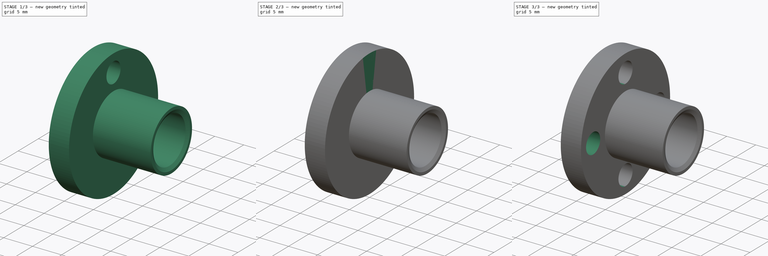
[diagram: build sequence overview — one tinted view per stage of 3, left to right]
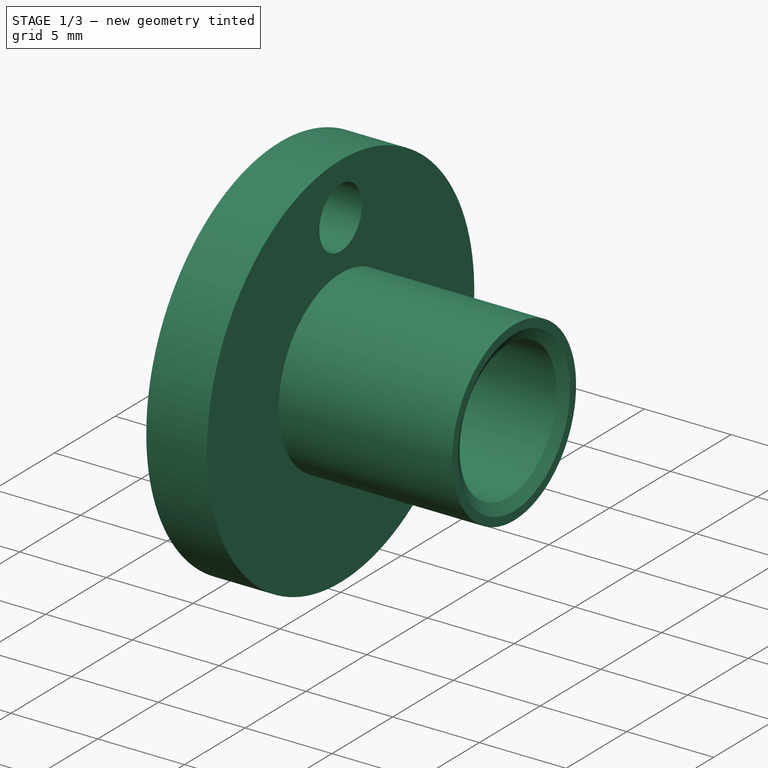
[diagram: stage 1 of 3 — iso view after this stage's code; geometry added in this stage tinted green]
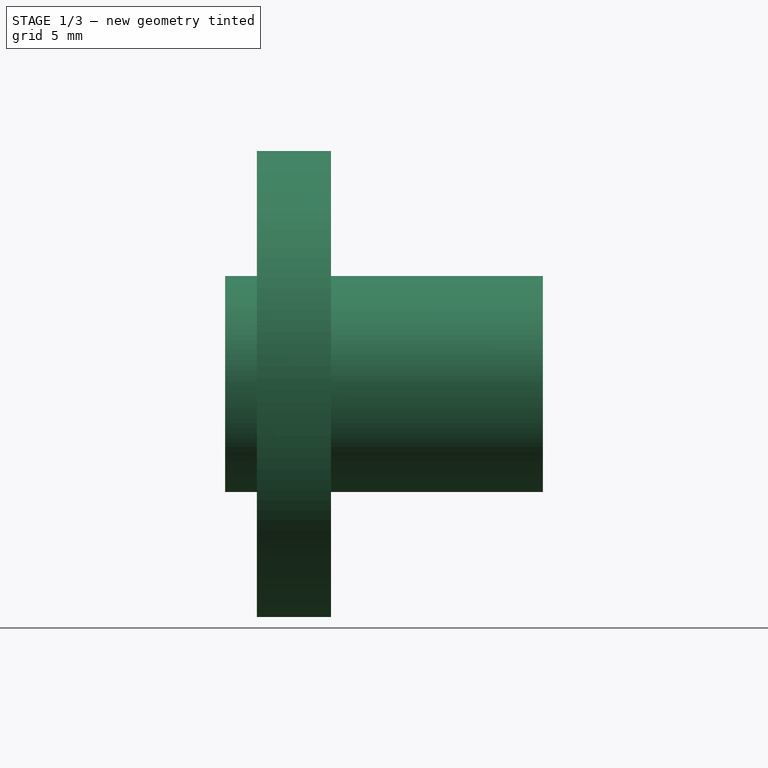
[diagram: stage 1 of 3 — front view after this stage's code; geometry added in this stage tinted green]
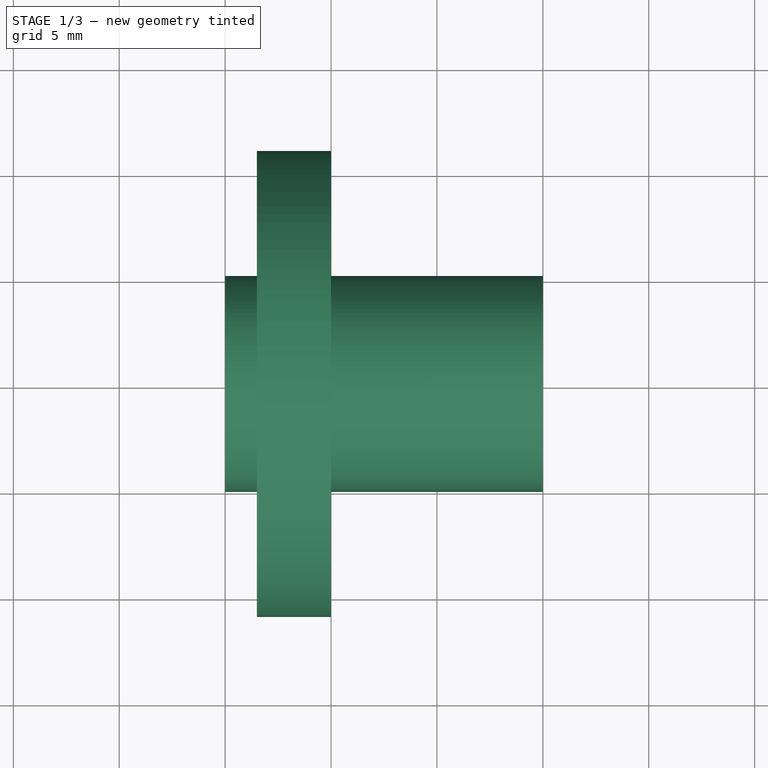
[diagram: stage 1 of 3 — top view after this stage's code; geometry added in this stage tinted green]
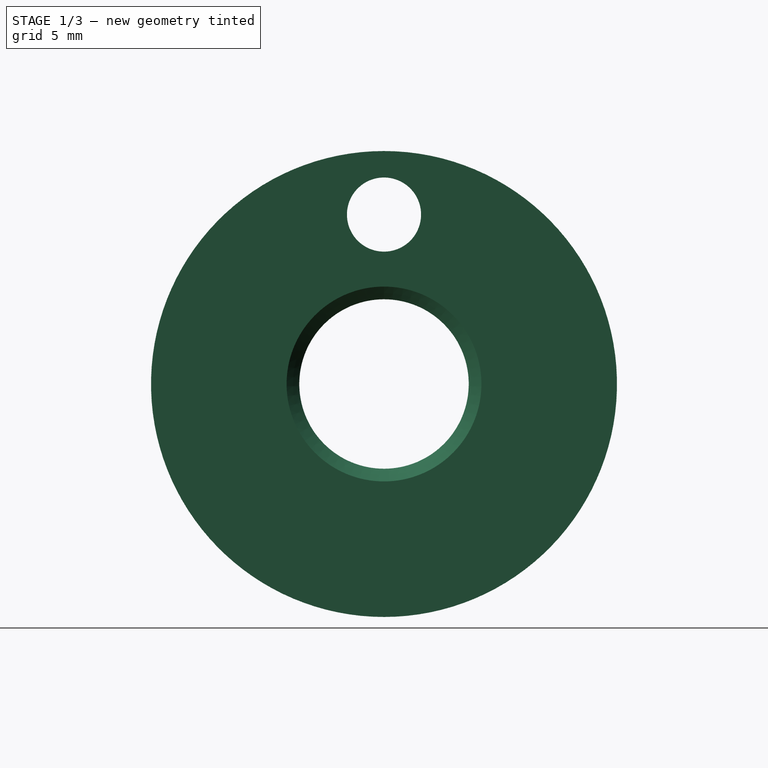
[diagram: stage 1 of 3 — right view after this stage's code; geometry added in this stage tinted green]
FCSTD DOCUMENT  (FreeCAD 0.16R6703 (Git))
Label: Brass_nut
License: CreativeCommons Attribution-ShareAlike
LicenseURL: http://creativecommons.org/licenses/by-sa/4.0/
objects: Sketcher::SketchObject×6, PartDesign::Pocket×3, PartDesign::Revolution×2, PartDesign::PolarPattern×2
note: 18 computed .brp shape members not serialized (recipe doc carries the construction recipe); baked Part::Feature solids carry a one-line shape summary decoded from their .brp

FEATURE [Sketcher::SketchObject] Sketch003
  Placement = pos=(0,0,0) rot=(1,0,0;1.5708rad)
  sketch-geometry (10):
    g0: LineSegment StartX=0.34641 StartY=4 StartZ=0 EndX=14.6536 EndY=4 EndZ=0
    g1: LineSegment StartX=15 StartY=5.1 StartZ=0 EndX=5 EndY=5.1 EndZ=0
    g2: LineSegment StartX=5 StartY=5.1 StartZ=0 EndX=5 EndY=11 EndZ=0
    g3: LineSegment StartX=5 StartY=11 StartZ=0 EndX=1.5 EndY=11 EndZ=0
    g4: LineSegment StartX=1.5 StartY=11 StartZ=0 EndX=1.5 EndY=5.1 EndZ=0
    g5: LineSegment StartX=1.5 StartY=5.1 StartZ=0 EndX=0 EndY=5.1 EndZ=0
    g6: LineSegment StartX=0 StartY=5.1 StartZ=0 EndX=0 EndY=4.6 EndZ=0
    g7: LineSegment StartX=0 StartY=4.6 StartZ=0 EndX=0.34641 EndY=4 EndZ=0
    g8: LineSegment StartX=15 StartY=5.1 StartZ=0 EndX=15 EndY=4.6 EndZ=0
    g9: LineSegment StartX=15 StartY=4.6 StartZ=0 EndX=14.6536 EndY=4 EndZ=0
  constraints (30):
    c: Horizontal(g0)
    c: Horizontal(g1)
    c: Coincident(g1,g2)
    c: Vertical(g2)
    c: Coincident(g2,g3)
    c: Horizontal(g3)
    c: Coincident(g3,g4)
    c: Vertical(g4)
    c: Coincident(g4,g5)
    c: PointOnObject(g5,g-2)
    c: Horizontal(g5)
    c: DistanceX(g5,g5) = 1.5
    c: DistanceX(g3,g3) = 3.5
    c: DistanceX(g1,g1) = 10
    c: DistanceY(g-1,g2) = 11
    c: DistanceY(g-1,g1) = 5.1
    c: Coincident(g5,g6)
    c: PointOnObject(g6,g-2)
    c: Coincident(g6,g7)
    c: Coincident(g7,g0)
    c: Coincident(g1,g8)
    c: Vertical(g8)
    c: Coincident(g8,g9)
    c: Coincident(g9,g0)
    c: Angle(g7,g6) = 2.61799
    c: Equal(g6,g8)
    c: Equal(g7,g9)
    c: Angle(g8,g9) = 2.61799
    c: DistanceY(g-1,g0) = 4
    c: DistanceY(g8,g8) = 0.5
FEATURE [PartDesign::Revolution] Revolution001
  Angle = 360
  Axis = (1,0,0)
  Base = (0,0,0)
  Placement = pos=(0,0,0) rot=(1,0,0;1.5708rad)
  ReferenceAxis = -> Sketch003 [H_Axis]
  Sketch = -> Sketch003
FEATURE [Sketcher::SketchObject] Sketch004
  Placement = pos=(5,0,0) rot=(0.707107,0,0.707107;3.14159rad)
  Support = -> Revolution001 [Face2]
  sketch-geometry (1):
    g0: Circle CenterX=8 CenterY=0 CenterZ=0 NormalX=0 NormalY=0 NormalZ=1 Radius=1.75
  constraints (3):
    c: PointOnObject(g0,g-1)
    c: Radius(g0) = 1.75
    c: DistanceX(g-1,g0) = 8
FEATURE [PartDesign::Pocket] Pocket001
  Length = 5
  Placement = pos=(0,0,0) rot=(1,0,0;1.5708rad)
  Sketch = -> Sketch004
  Type = 1
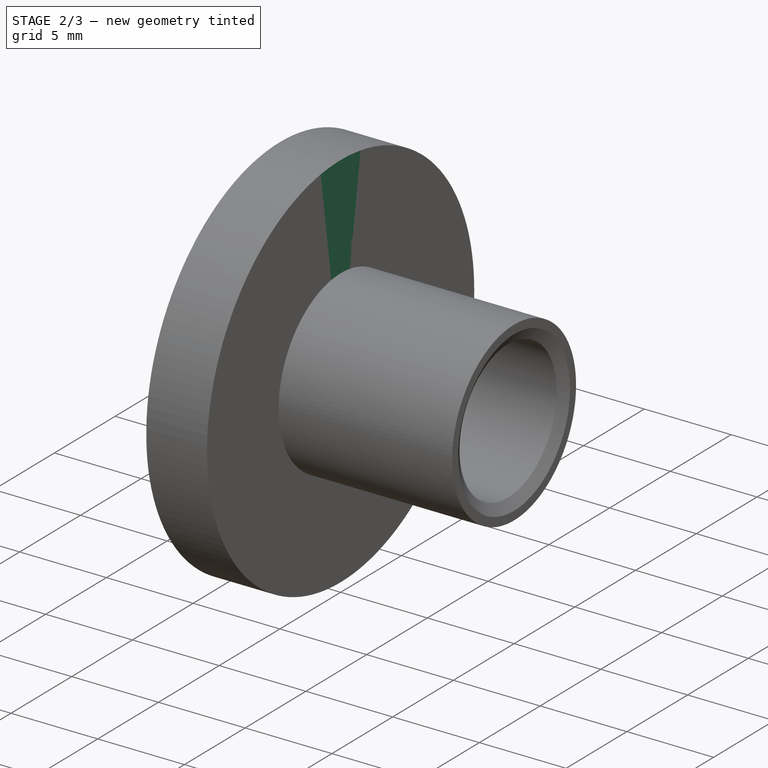
[diagram: stage 2 of 3 — iso view after this stage's code; geometry added in this stage tinted green]
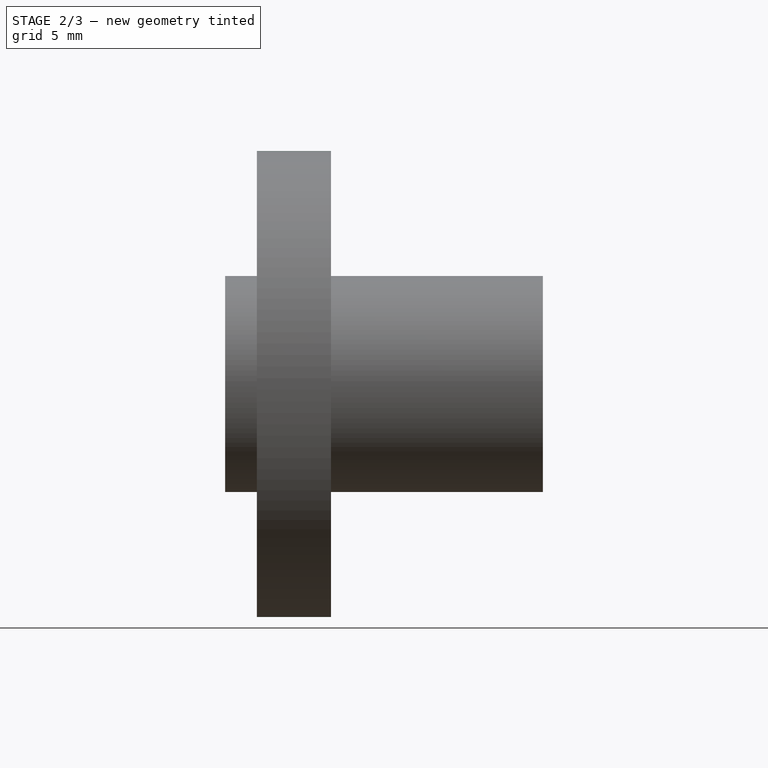
[diagram: stage 2 of 3 — front view after this stage's code; geometry added in this stage tinted green]
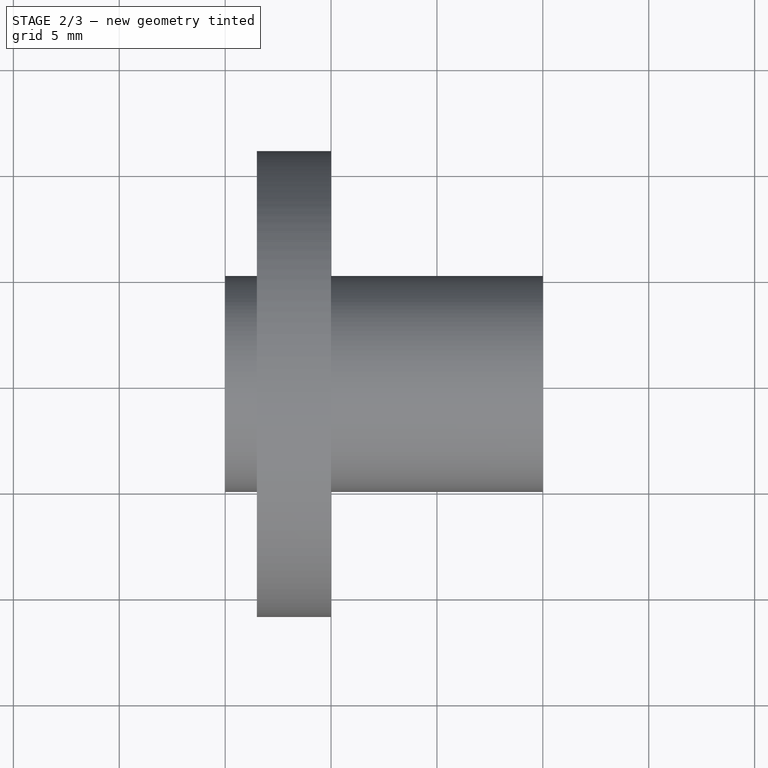
[diagram: stage 2 of 3 — top view after this stage's code; geometry added in this stage tinted green]
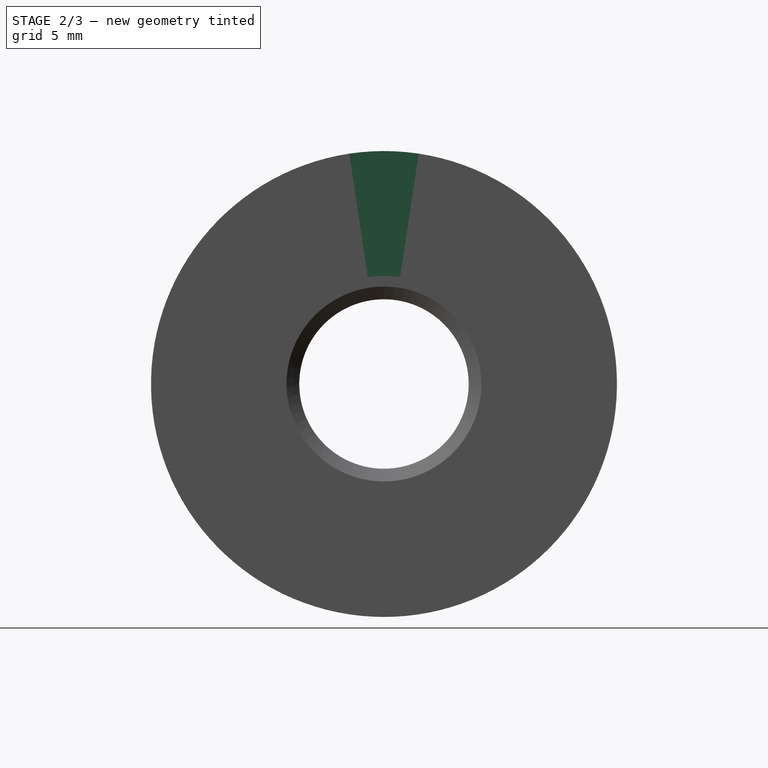
[diagram: stage 2 of 3 — right view after this stage's code; geometry added in this stage tinted green]
FEATURE [Sketcher::SketchObject] Sketch
  Placement = pos=(0,0,0) rot=(-1,0,0;4.71239rad)
  sketch-geometry (10):
    g0: LineSegment StartX=0.34641 StartY=4 StartZ=0 EndX=14.6536 EndY=4 EndZ=0
    g1: LineSegment StartX=15 StartY=5.1 StartZ=0 EndX=5 EndY=5.1 EndZ=0
    g2: LineSegment StartX=5 StartY=5.1 StartZ=0 EndX=5 EndY=11 EndZ=0
    g3: LineSegment StartX=5 StartY=11 StartZ=0 EndX=1.5 EndY=11 EndZ=0
    g4: LineSegment StartX=1.5 StartY=11 StartZ=0 EndX=1.5 EndY=5.1 EndZ=0
    g5: LineSegment StartX=1.5 StartY=5.1 StartZ=0 EndX=0 EndY=5.1 EndZ=0
    g6: LineSegment StartX=0 StartY=5.1 StartZ=0 EndX=0 EndY=4.6 EndZ=0
    g7: LineSegment StartX=0 StartY=4.6 StartZ=0 EndX=0.34641 EndY=4 EndZ=0
    g8: LineSegment StartX=15 StartY=5.1 StartZ=0 EndX=15 EndY=4.6 EndZ=0
    g9: LineSegment StartX=15 StartY=4.6 StartZ=0 EndX=14.6536 EndY=4 EndZ=0
  constraints (30):
    c: Horizontal(g0)
    c: Horizontal(g1)
    c: Coincident(g1,g2)
    c: Vertical(g2)
    c: Coincident(g2,g3)
    c: Horizontal(g3)
    c: Coincident(g3,g4)
    c: Vertical(g4)
    c: Coincident(g4,g5)
    c: PointOnObject(g5,g-2)
    c: Horizontal(g5)
    c: DistanceX(g5,g5) = 1.5
    c: DistanceX(g3,g3) = 3.5
    c: DistanceX(g1,g1) = 10
    c: DistanceY(g-1,g2) = 11
    c: DistanceY(g-1,g1) = 5.1
    c: Coincident(g5,g6)
    c: PointOnObject(g6,g-2)
    c: Coincident(g6,g7)
    c: Coincident(g7,g0)
    c: Coincident(g1,g8)
    c: Vertical(g8)
    c: Coincident(g8,g9)
    c: Coincident(g9,g0)
    c: Angle(g7,g6) = 2.61799
    c: Equal(g6,g8)
    c: Equal(g7,g9)
    c: Angle(g8,g9) = 2.61799
    c: DistanceY(g-1,g0) = 4
    c: DistanceY(g8,g8) = 0.5
FEATURE [PartDesign::Revolution] Revolution
  Angle = 360
  Axis = (1,0,0)
  Base = (0,0,0)
  Placement = pos=(0,0,0) rot=(-1,0,0;4.71239rad)
  ReferenceAxis = -> Sketch [H_Axis]
  Sketch = -> Sketch
FEATURE [PartDesign::PolarPattern] PolarPattern001
  Angle = 360
  Axis = -> Sketch004 [N_Axis]
  Occurrences = 4
  Originals = -> [Pocket001]
  Placement = pos=(0,0,0) rot=(1,0,0;1.5708rad)
FEATURE [Sketcher::SketchObject] Sketch005
  Placement = pos=(15,0,0) rot=(0.707107,0,0.707107;3.14159rad)
  Support = -> PolarPattern001 [Face2]
  sketch-geometry (4):
    g0: LineSegment StartX=23.2428 StartY=0.093266 StartZ=0 EndX=-14.0576 EndY=0.093266 EndZ=0
    g1: LineSegment StartX=-14.0576 StartY=0.093266 StartZ=0 EndX=-14.0576 EndY=30.2209 EndZ=0
    g2: LineSegment StartX=-14.0576 StartY=30.2209 StartZ=0 EndX=23.2428 EndY=30.2209 EndZ=0
    g3: LineSegment StartX=23.2428 StartY=30.2209 StartZ=0 EndX=23.2428 EndY=0.093266 EndZ=0
  constraints (8):
    c: Coincident(g0,g1)
    c: Coincident(g1,g2)
    c: Coincident(g2,g3)
    c: Coincident(g3,g0)
    c: Horizontal(g0)
    c: Horizontal(g2)
    c: Vertical(g1)
    c: Vertical(g3)
FEATURE [PartDesign::Pocket] Pocket002
  Length = 5
  Placement = pos=(0,0,0) rot=(1,0,0;1.5708rad)
  Sketch = -> Sketch005
  Type = 1
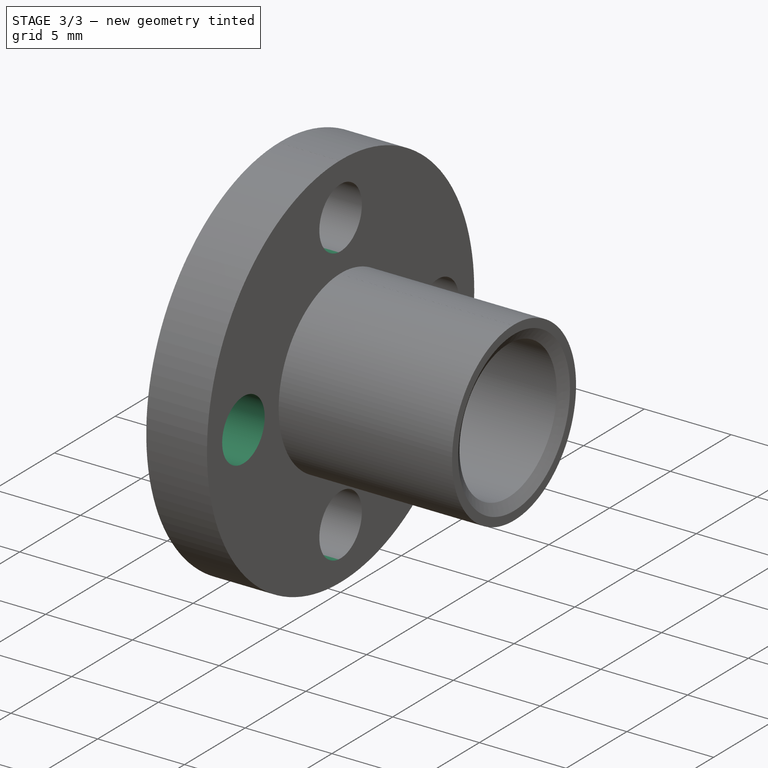
[diagram: stage 3 of 3 — iso view after this stage's code; geometry added in this stage tinted green]
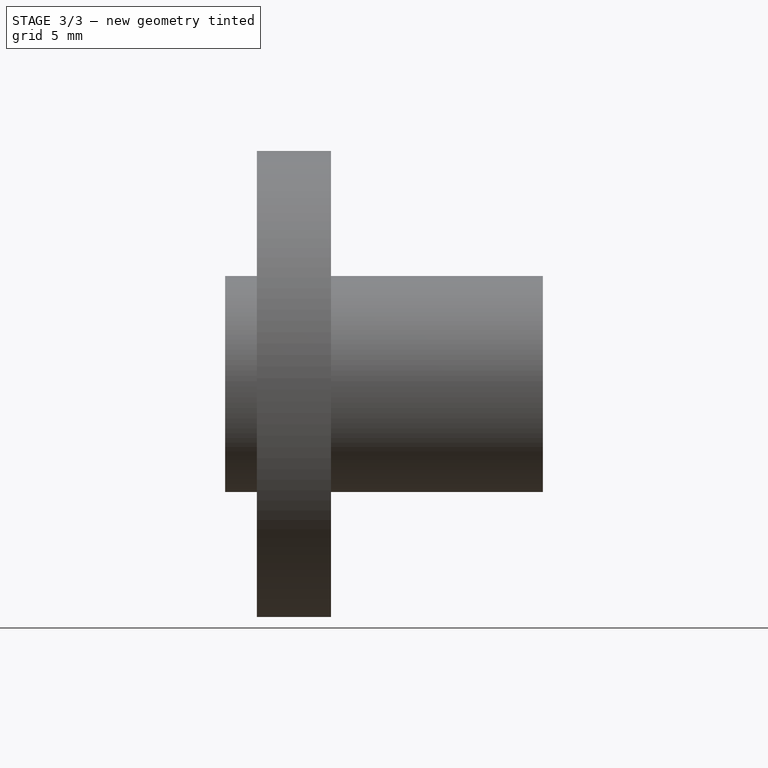
[diagram: stage 3 of 3 — front view after this stage's code; geometry added in this stage tinted green]
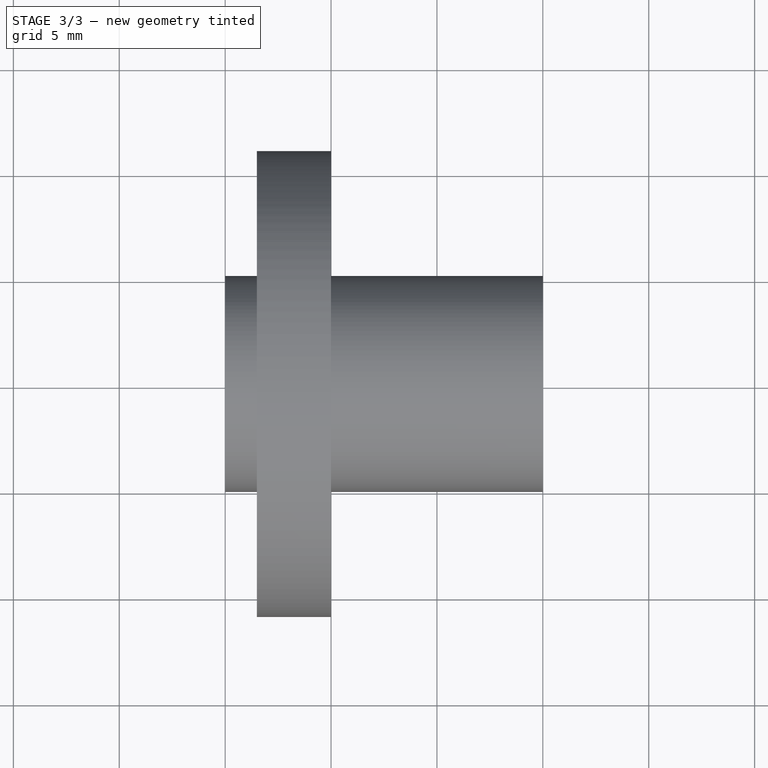
[diagram: stage 3 of 3 — top view after this stage's code; geometry added in this stage tinted green]
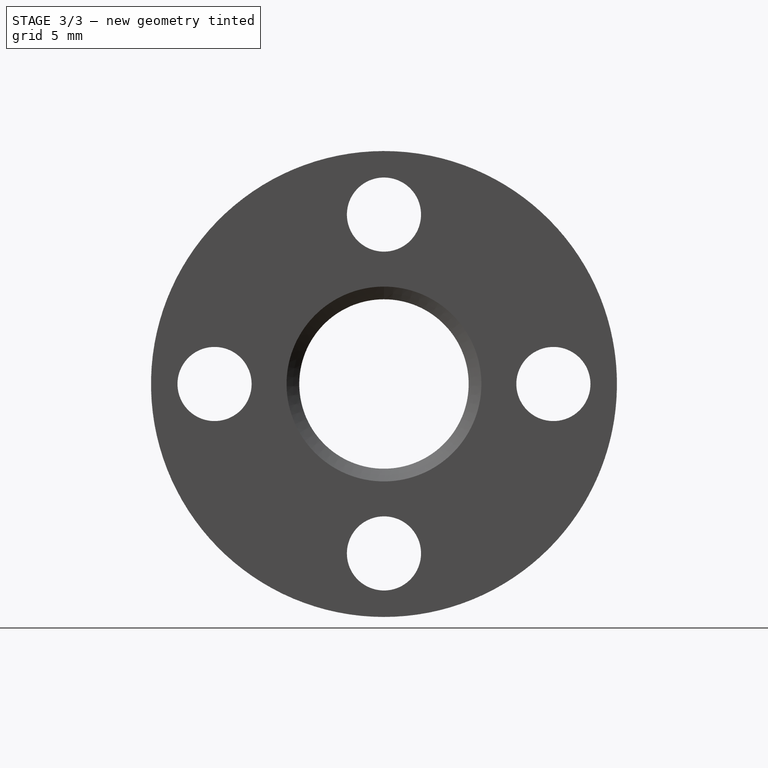
[diagram: stage 3 of 3 — right view after this stage's code; geometry added in this stage tinted green]
FEATURE [Sketcher::SketchObject] Sketch001
  Placement = pos=(1.5,0,0) rot=(0.707107,0,-0.707107;3.14159rad)
  Support = -> Revolution [Face4]
FEATURE [Sketcher::SketchObject] Sketch002
  Placement = pos=(5,0,0) rot=(0.707107,0,0.707107;3.14159rad)
  Support = -> Revolution [Face2]
  sketch-geometry (1):
    g0: Circle CenterX=8 CenterY=0 CenterZ=0 NormalX=0 NormalY=0 NormalZ=1 Radius=1.75
  constraints (3):
    c: PointOnObject(g0,g-1)
    c: Radius(g0) = 1.75
    c: DistanceX(g-1,g0) = 8
FEATURE [PartDesign::Pocket] Pocket
  Length = 5
  Placement = pos=(0,0,0) rot=(-1,0,0;4.71239rad)
  Sketch = -> Sketch002
  Type = 1
FEATURE [PartDesign::PolarPattern] PolarPattern
  Angle = 360
  Axis = -> Sketch002 [N_Axis]
  Occurrences = 4
  Originals = -> [Pocket]
  Placement = pos=(0,0,0) rot=(-1,0,0;4.71239rad)
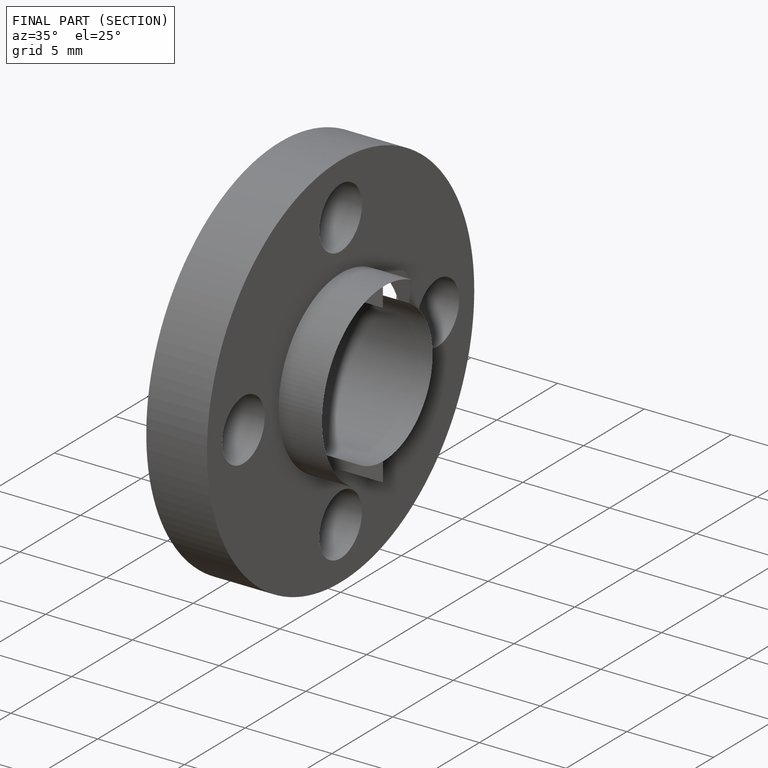
[diagram: finished part — half-section view (interior)]
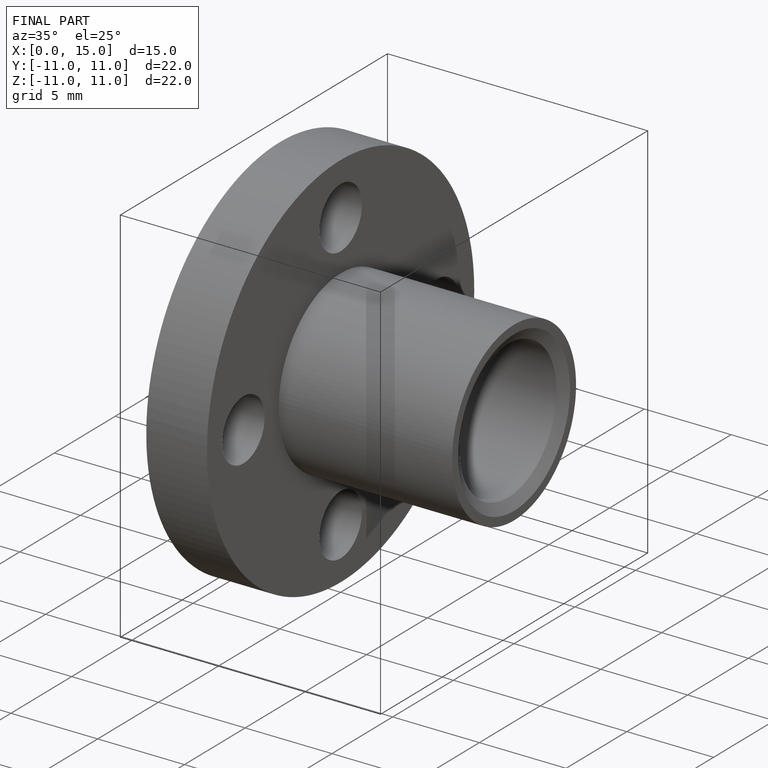
[diagram: finished part — iso view with bounding-box wireframe]
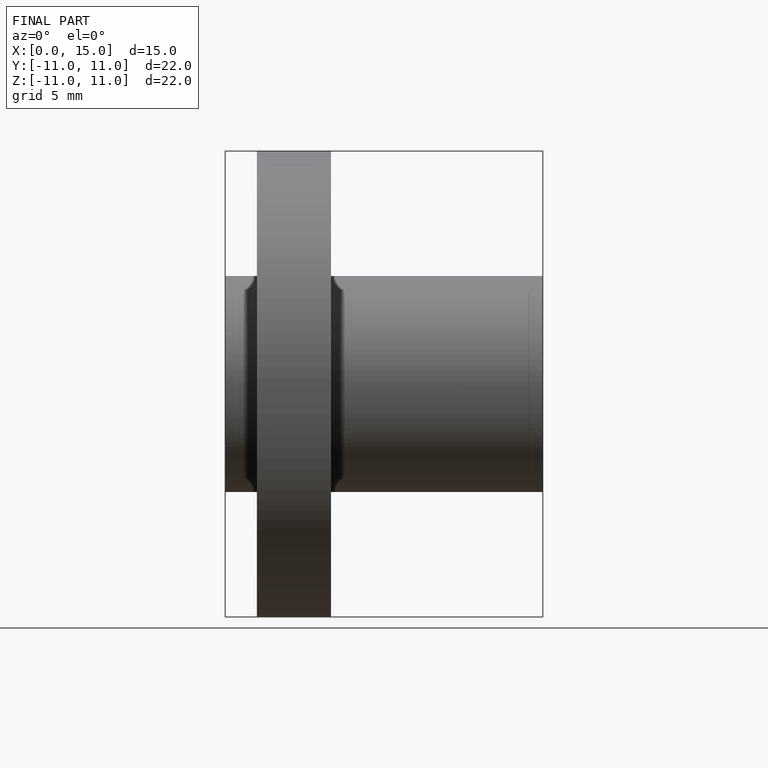
[diagram: finished part — front view with bounding-box wireframe]
